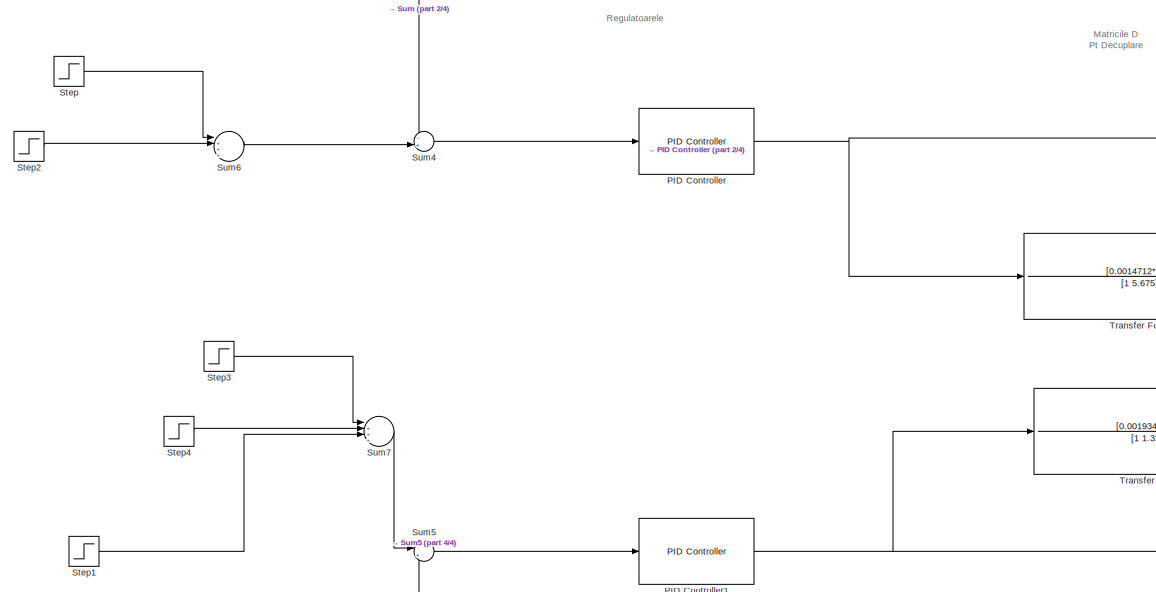
[diagram: root canvas - part 1/4, left side, full height]
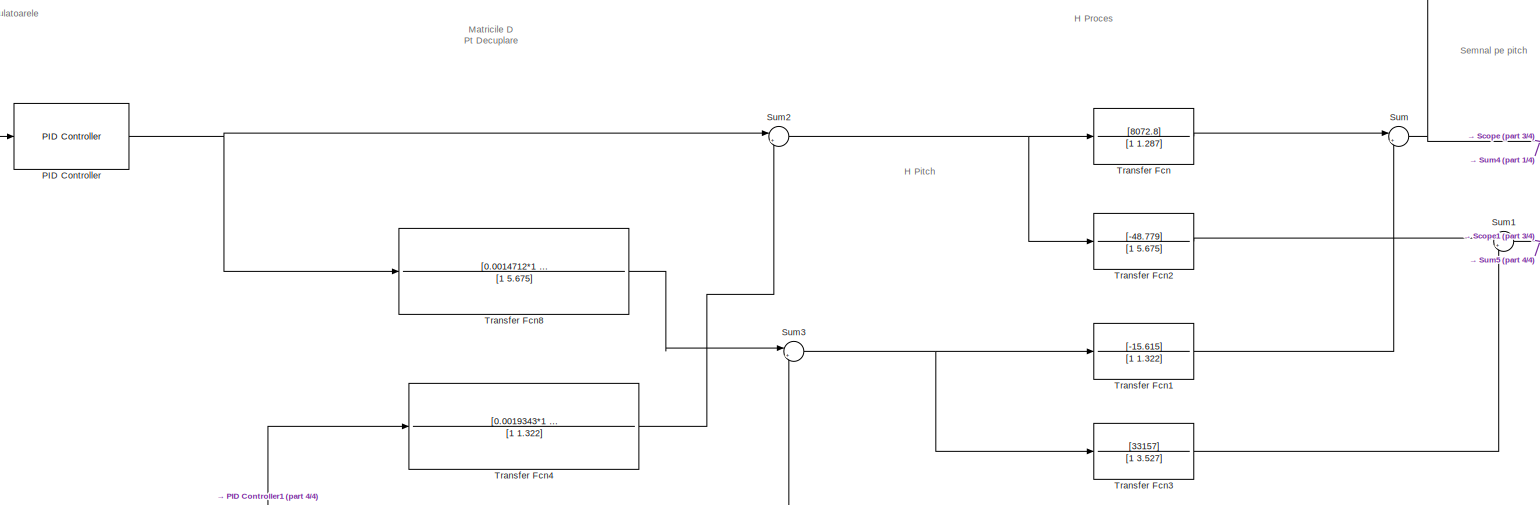
[diagram: root canvas - part 2/4, central region]
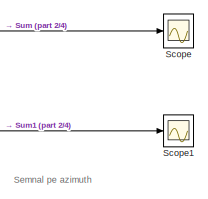
[diagram: root canvas - part 3/4, middle right region]
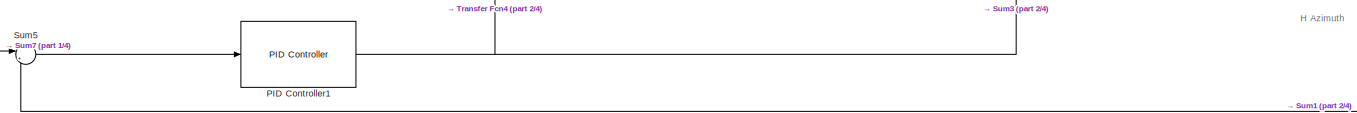
[diagram: root canvas - part 4/4, bottom center region]
MODEL slx_1f98c25a7820
KIND model
CONFIG AbsTol = auto
CONFIG EnableMultiTasking = off
CONFIG FixedStep = auto
CONFIG MaxStep = auto
CONFIG MinStep = auto
CONFIG RelTol = 1e-3
CONFIG SampleTimeConstraint = Unconstrained
CONFIG SolverName = VariableStepAuto
CONFIG StartTime = 0.0
CONFIG StopTime = 10.0
BLOCK [Reference] PID Controller  REF=slpidlib/PID Controller
  LibrarySourceBlock = simulink/Continuous/PID Controller
  SourceBlock = slpidlib/PID Controller
  SourceType = PID 1dof
BLOCK [Reference] PID Controller1  REF=slpidlib/PID Controller
  LibrarySourceBlock = simulink/Continuous/PID Controller
  SourceBlock = slpidlib/PID Controller
  SourceType = PID 1dof
BLOCK [Scope] Scope
  Floating = off
  NumInputPorts = 1
  ScopeSpecificationString = Simulink.scopes.TimeScopeBlockCfg('CurrentConfiguration', extmgr.ConfigurationSet(extmgr.Configuration('Core','General UI',true),extmgr.Configuration('Core','Source UI',true),extmgr.Configuration('Sources','WiredSimulink',true),extmgr.Configuration('Visuals','Time Domain',true,'SerializedDisplays',{struct('MinYLimReal','-0.1','MaxYLimReal','0.89999','YLabelReal','','MinYLimMag','0.00000','MaxYLimM...<+1418ch>
BLOCK [Scope] Scope1
  Floating = off
  NumInputPorts = 1
  ScopeSpecificationString = Simulink.scopes.TimeScopeBlockCfg('CurrentConfiguration', extmgr.ConfigurationSet(extmgr.Configuration('Core','General UI',true),extmgr.Configuration('Core','Source UI',true),extmgr.Configuration('Sources','WiredSimulink',true,'DataLoggingVariableName','ScopeData1'),extmgr.Configuration('Visuals','Time Domain',true,'SerializedDisplays',{struct('MinYLimReal','-0.18759','MaxYLimReal','1.68832','YLab...<+1467ch>
BLOCK [Step] Step
  After = 0.3
  SampleTime = 0
  Time = 0
BLOCK [Step] Step1
  After = -0.2
  SampleTime = 0
  Time = 7
BLOCK [Step] Step2
  After = 0.5
  SampleTime = 0
  Time = 5
BLOCK [Step] Step3
  SampleTime = 0
  Time = 0
BLOCK [Step] Step4
  After = 0.5
  SampleTime = 0
  Time = 5
BLOCK [Sum] Sum
  Inputs = |++
BLOCK [Sum] Sum1
  Inputs = |++
BLOCK [Sum] Sum2
  Inputs = |++
BLOCK [Sum] Sum3
  Inputs = |++
BLOCK [Sum] Sum4
  Inputs = -+|
BLOCK [Sum] Sum5
  Inputs = |+-
BLOCK [Sum] Sum6
  Inputs = |++++
BLOCK [Sum] Sum7
  Inputs = |++++
BLOCK [TransferFcn] Transfer Fcn
  Denominator = [1 1.287]
  Numerator = [8072.8]
BLOCK [TransferFcn] Transfer Fcn1
  Denominator = [1 1.322]
  Numerator = [-15.615]
BLOCK [TransferFcn] Transfer Fcn2
  Denominator = [1 5.675]
  Numerator = [-48.779]
BLOCK [TransferFcn] Transfer Fcn3
  Denominator = [1 3.527]
  Numerator = [33157]
BLOCK [TransferFcn] Transfer Fcn4
  Denominator = [1 1.322]
  Numerator = [0.0019343*1 0.0019343*1.287]
BLOCK [TransferFcn] Transfer Fcn8
  Denominator = [1 5.675]
  Numerator = [0.0014712*1    0.0014712*3.527]
ANNOTATION (root): H Azimuth
ANNOTATION (root): H Pitch
ANNOTATION (root): H Proces
ANNOTATION (root): Matricile D Pt Decuplare
ANNOTATION (root): Regulatoarele
ANNOTATION (root): Semnal pe azimuth
ANNOTATION (root): Semnal pe pitch
NET PID Controller1:1 -> Sum3:2, Transfer Fcn4:1
NET PID Controller:1 -> Sum2:1, Transfer Fcn8:1
LINE Step1:1 -> Sum7:3
LINE Step2:1 -> Sum6:2
LINE Step3:1 -> Sum7:1
LINE Step4:1 -> Sum7:2
LINE Step:1 -> Sum6:1
NET Sum1:1 -> Scope1:1, Sum5:2
NET Sum2:1 -> Transfer Fcn2:1, Transfer Fcn:1
NET Sum3:1 -> Transfer Fcn1:1, Transfer Fcn3:1
LINE Sum4:1 -> PID Controller:1
LINE Sum5:1 -> PID Controller1:1
LINE Sum6:1 -> Sum4:2
LINE Sum7:1 -> Sum5:1
NET Sum:1 -> Scope:1, Sum4:1
LINE Transfer Fcn1:1 -> Sum:2
LINE Transfer Fcn2:1 -> Sum1:1
LINE Transfer Fcn3:1 -> Sum1:2
LINE Transfer Fcn4:1 -> Sum2:2
LINE Transfer Fcn8:1 -> Sum3:1
LINE Transfer Fcn:1 -> Sum:1
note: NET lines group one-source signal fan-out (src -> all destinations, sorted); 1:1 wires keep LINE
